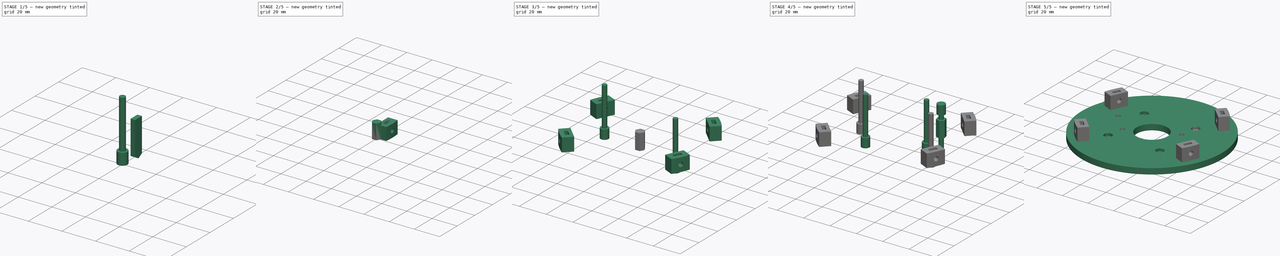
[diagram: build sequence overview — one tinted view per stage of 5, left to right]
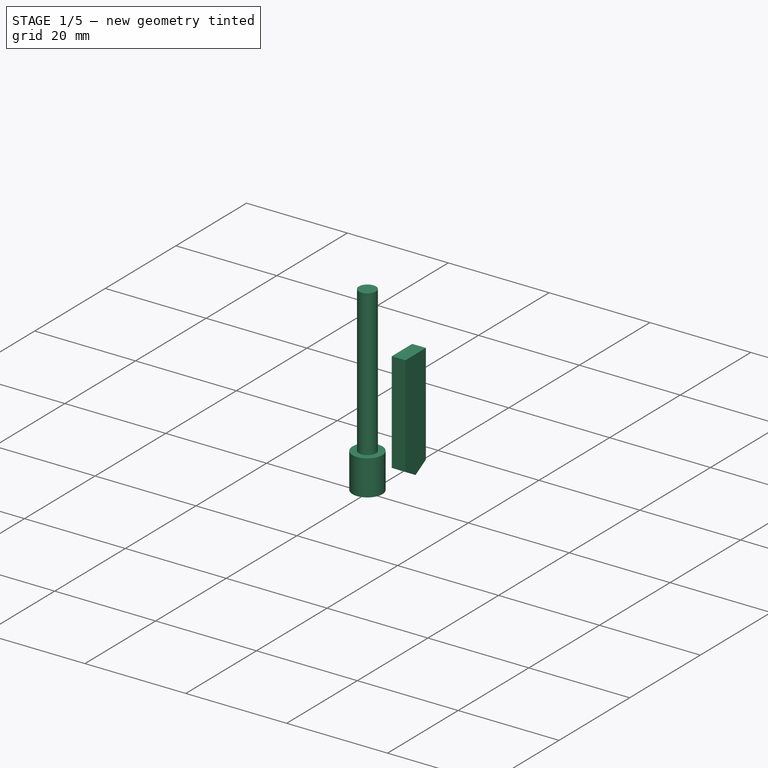
[diagram: stage 1 of 5 — iso view after this stage's code; geometry added in this stage tinted green]
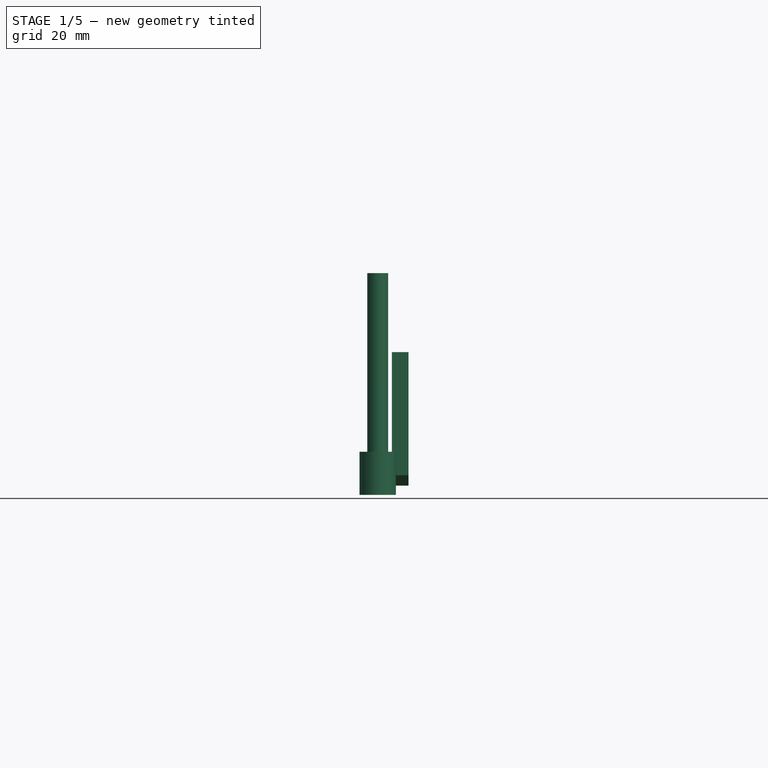
[diagram: stage 1 of 5 — front view after this stage's code; geometry added in this stage tinted green]
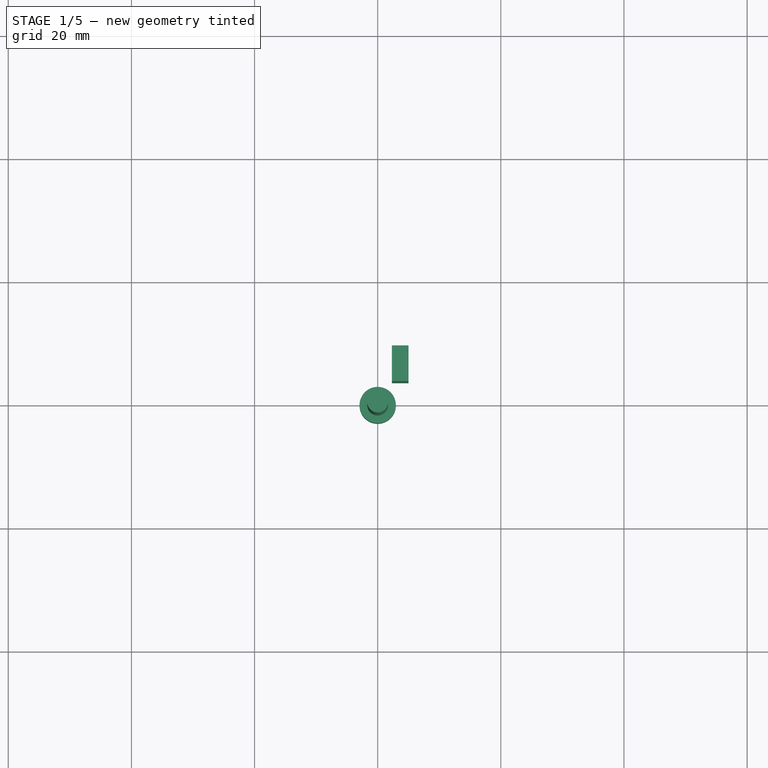
[diagram: stage 1 of 5 — top view after this stage's code; geometry added in this stage tinted green]
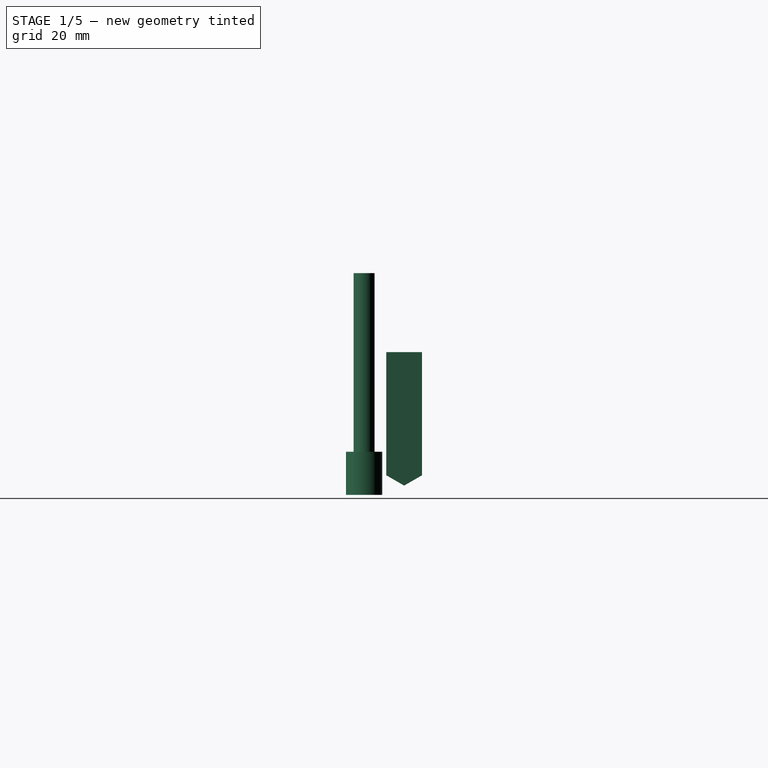
[diagram: stage 1 of 5 — right view after this stage's code; geometry added in this stage tinted green]
FCSTD DOCUMENT  (FreeCAD 0.16R6460 (Git))
Label: Art4BodyBot
License: All rights reserved
LicenseURL: http://en.wikipedia.org/wiki/All_rights_reserved
objects: Part::FeaturePython×13, Part::MultiFuse×5, Sketcher::SketchObject×3, Part::Cylinder×2, PartDesign::Pad×2, Part::Cut×2, Part::Prism×1, PartDesign::Revolution×1, App::DocumentObjectGroup×1
note: 32 computed .brp shape members not serialized (recipe doc carries the construction recipe); baked Part::Feature solids carry a one-line shape summary decoded from their .brp

FEATURE [Part::Cylinder] Cylinder  label="M3BoltHead"
  Angle = 360
  Height = 7
  Radius = 2.95
FEATURE [Part::Cylinder] Cylinder001  label="M3BoltBody"
  Angle = 360
  Height = 30
  Placement = pos=(0,0,6) rot=(0,0,1;0rad)
  Radius = 1.7
FEATURE [Part::MultiFuse] Fusion  label="M3Bolt"
  Shapes = -> [Cylinder001,Cylinder]
FEATURE [Sketcher::SketchObject] Sketch003  label="M3NutHousingSketch"
  sketch-geometry (5):
    g0: LineSegment StartX=0 StartY=0 StartZ=0 EndX=1.67432 EndY=2.9 EndZ=0
    g1: LineSegment StartX=1.67432 StartY=2.9 StartZ=0 EndX=21.6743 EndY=2.9 EndZ=0
    g2: LineSegment StartX=21.6743 StartY=2.9 StartZ=0 EndX=21.6743 EndY=-2.9 EndZ=0
    g3: LineSegment StartX=21.6743 StartY=-2.9 StartZ=0 EndX=1.67432 EndY=-2.9 EndZ=0
    g4: LineSegment StartX=1.67432 StartY=-2.9 StartZ=0 EndX=0 EndY=0 EndZ=0
  constraints (14):
    c: Coincident(g-1,g0)
    c: Coincident(g0,g1)
    c: Horizontal(g1)
    c: Coincident(g1,g2)
    c: Vertical(g2)
    c: Coincident(g2,g3)
    c: Horizontal(g3)
    c: Coincident(g3,g4)
    c: Coincident(g4,g0)
    c: Equal(g3,g1)
    c: Equal(g4,g0)
    c: DistanceY(g2) = -5.8
    c: Angle(g-1,g0) = 1.0472
    c: DistanceX(g3) = -20
FEATURE [PartDesign::Pad] Pad002  label="M3NutHousing"
  Length = 2.7
  Length2 = 100
  Sketch = -> Sketch003
  Type = 0
FEATURE [Part::FeaturePython] Clone271  label="Clone of M3NutHousing025"  # Draft clone (typed FeaturePython)
  Objects = -> [Pad002]
  Placement = pos=(5,6.5,1.5) rot=(0,-1,0;1.5708rad)
  Scale = (1,1,1)
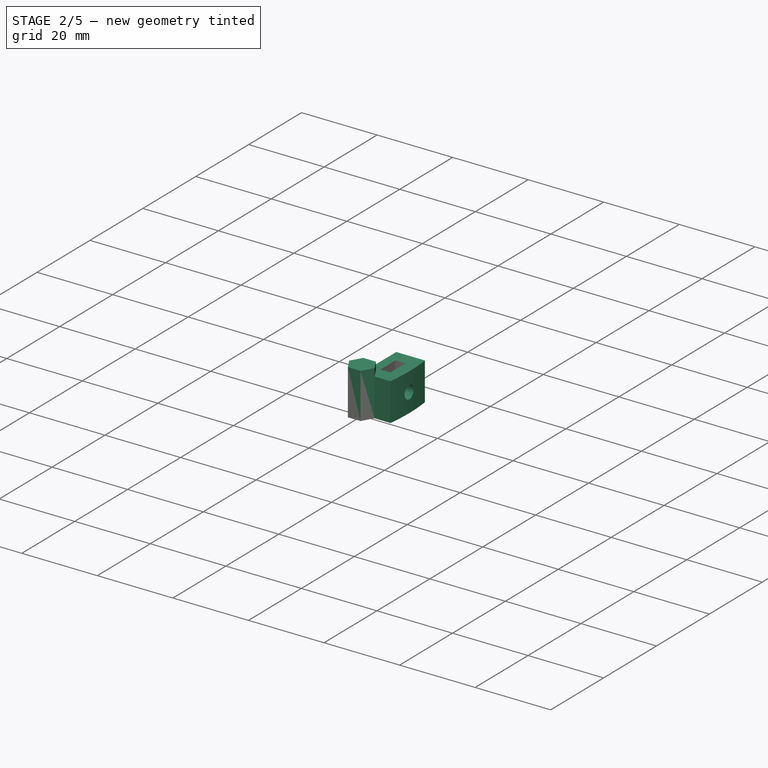
[diagram: stage 2 of 5 — iso view after this stage's code; geometry added in this stage tinted green]
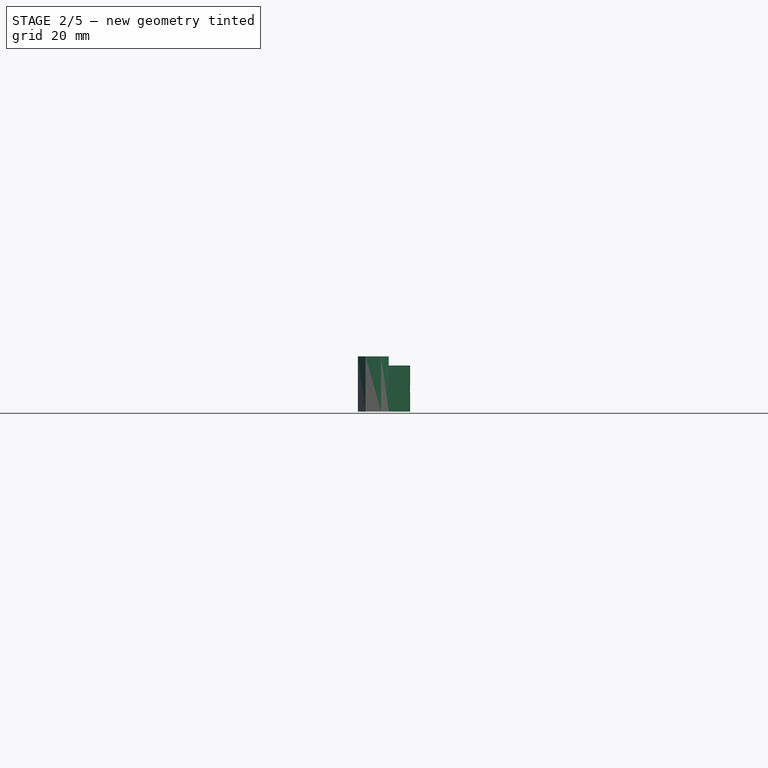
[diagram: stage 2 of 5 — front view after this stage's code; geometry added in this stage tinted green]
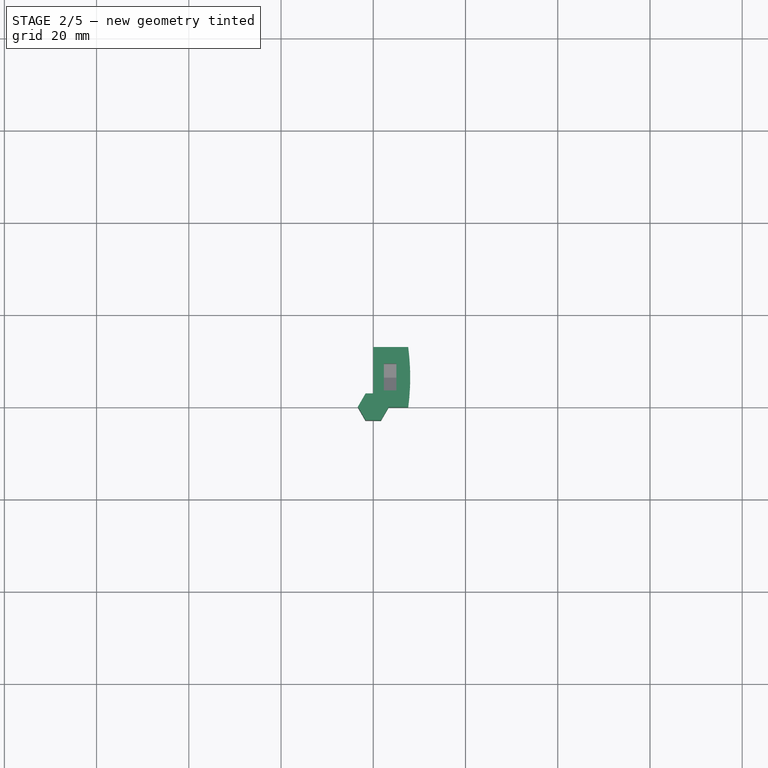
[diagram: stage 2 of 5 — top view after this stage's code; geometry added in this stage tinted green]
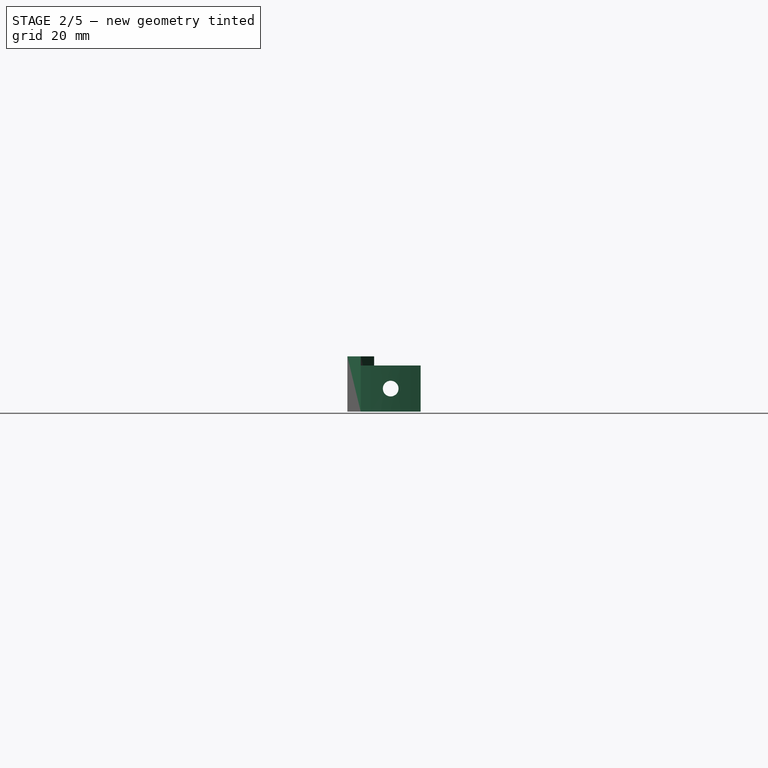
[diagram: stage 2 of 5 — right view after this stage's code; geometry added in this stage tinted green]
FEATURE [Part::Prism] Prism  label="M3Nut"
  Circumradius = 3.35
  Height = 12
  Polygon = 6
FEATURE [Sketcher::SketchObject] Sketch050
  sketch-geometry (4):
    g0: LineSegment StartX=7.5757 StartY=0 StartZ=0 EndX=0 EndY=0 EndZ=0
    g1: LineSegment StartX=0 StartY=0 StartZ=0 EndX=0 EndY=13 EndZ=0
    g2: LineSegment StartX=0 StartY=13 StartZ=0 EndX=7.5757 EndY=13 EndZ=0
    g3: ArcOfCircle CenterX=-42 CenterY=6.5 CenterZ=0 NormalX=0 NormalY=0 NormalZ=1 Radius=50 StartAngle=6.15282 EndAngle=6.41355
  constraints (13):
    c: PointOnObject(g0,g-1)
    c: Horizontal(g0)
    c: Coincident(g0,g1)
    c: Vertical(g1)
    c: Coincident(g1,g2)
    c: Horizontal(g2)
    c: Coincident(g3,g2)
    c: Coincident(g3,g0)
    c: Coincident(g-1,g0)
    c: DistanceY(g1) = 13
    c: Equal(g0,g2)
    c: Radius(g3) = 50
    c: DistanceX(g-1,g3) = -42
FEATURE [PartDesign::Pad] Pad034
  Length = 10
  Length2 = 100
  Sketch = -> Sketch050
  Type = 0
FEATURE [Part::FeaturePython] Clone270  label="Clone of M3Bolt094"  # Draft clone (typed FeaturePython)
  Objects = -> [Fusion]
  Placement = pos=(24.5,6.5,5) rot=(0,-1,0;1.5708rad)
  Scale = (1,1,1)
FEATURE [Part::MultiFuse] Fusion093
  Shapes = -> [Clone270,Clone271]
FEATURE [Part::Cut] Cut080  label="Art4BodyFixMaster"
  Base = -> Pad034
  Tool = -> Fusion093
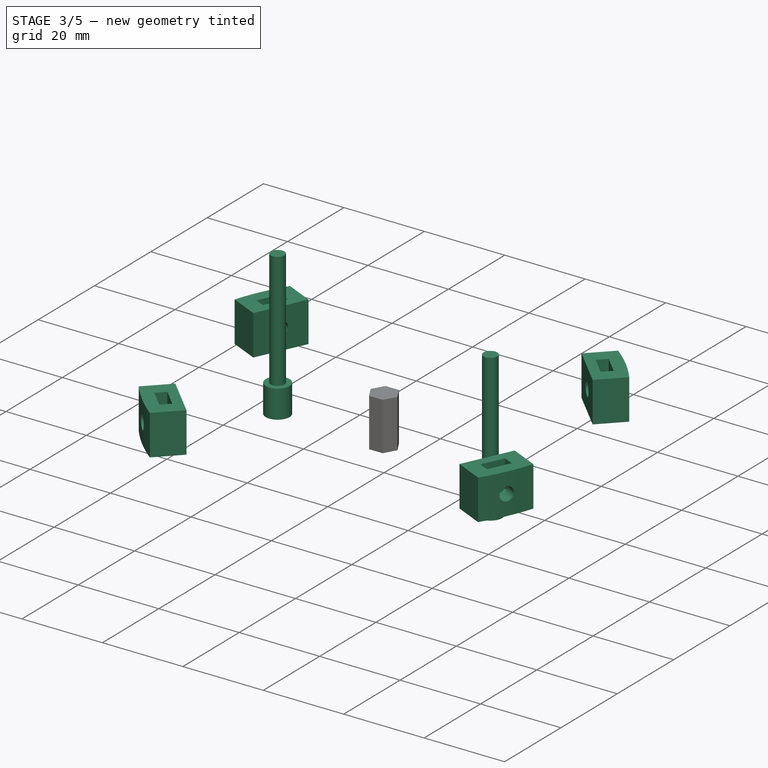
[diagram: stage 3 of 5 — iso view after this stage's code; geometry added in this stage tinted green]
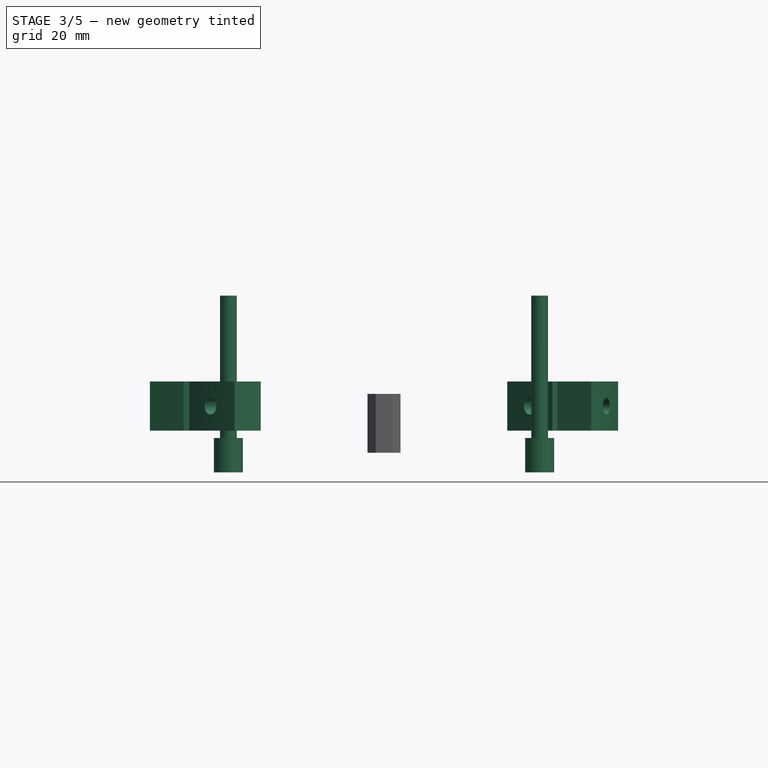
[diagram: stage 3 of 5 — front view after this stage's code; geometry added in this stage tinted green]
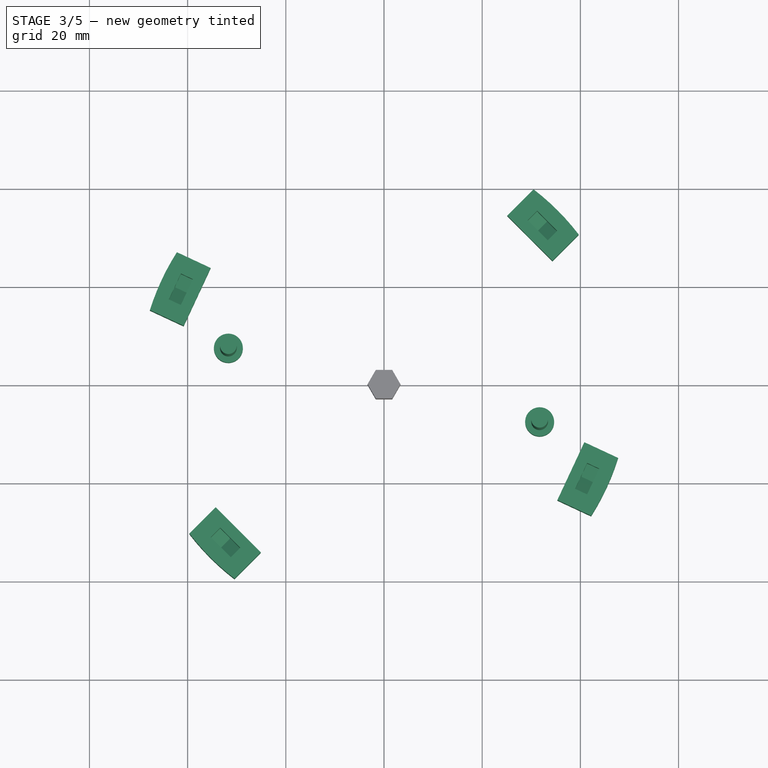
[diagram: stage 3 of 5 — top view after this stage's code; geometry added in this stage tinted green]
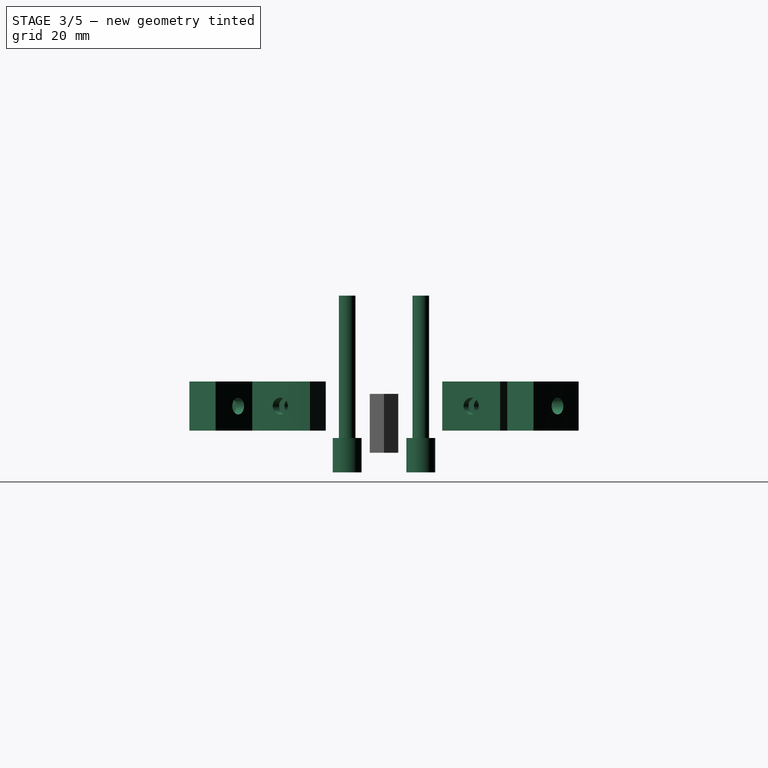
[diagram: stage 3 of 5 — right view after this stage's code; geometry added in this stage tinted green]
FEATURE [Part::FeaturePython] Clone268  label="Clone of M3Bolt092"  # Draft clone (typed FeaturePython)
  Objects = -> [Fusion]
  Placement = pos=(31.7,-7.5,-4) rot=(0,0,-1;1.5708rad)
  Scale = (1,1,1)
FEATURE [Part::FeaturePython] Clone269  label="Clone of M3Bolt093"  # Draft clone (typed FeaturePython)
  Objects = -> [Fusion]
  Placement = pos=(-31.7,7.5,-4) rot=(0,0,1;1.5708rad)
  Scale = (1,1,1)
FEATURE [Part::FeaturePython] Clone272  label="Clone of Art4BodyFixMaster"  # Draft clone (typed FeaturePython)
  Objects = -> [Cut080]
  Placement = pos=(34.2947,25.1023,4.5) rot=(0,0,1;0.785398rad)
  Scale = (1,1,1)
FEATURE [Part::FeaturePython] Clone273  label="Clone of Art4BodyFixMaster001"  # Draft clone (typed FeaturePython)
  Objects = -> [Cut080]
  Placement = pos=(-34.2947,-25.1023,4.5) rot=(0,0,1;3.92699rad)
  Scale = (1,1,1)
FEATURE [Part::FeaturePython] Clone274  label="Clone of Art4BodyFixMaster002"  # Draft clone (typed FeaturePython)
  Objects = -> [Cut080]
  Placement = pos=(35.3179,-23.641,4.5) rot=(0,0,-1;0.436332rad)
  Scale = (1,1,1)
FEATURE [Part::FeaturePython] Clone275  label="Clone of Art4BodyFixMaster003"  # Draft clone (typed FeaturePython)
  Objects = -> [Cut080]
  Placement = pos=(-35.3179,23.641,4.5) rot=(0,0,1;2.70526rad)
  Scale = (1,1,1)
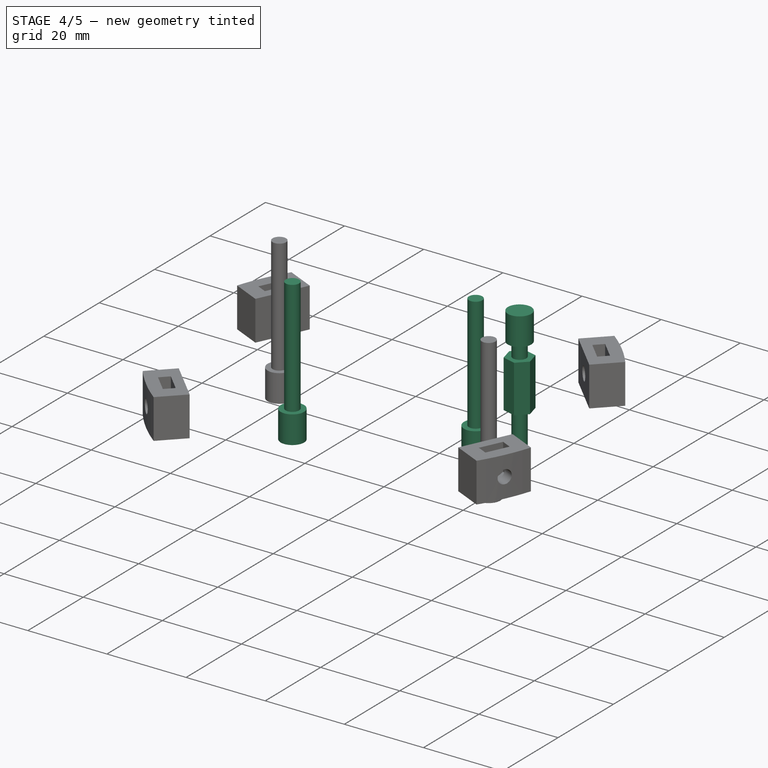
[diagram: stage 4 of 5 — iso view after this stage's code; geometry added in this stage tinted green]
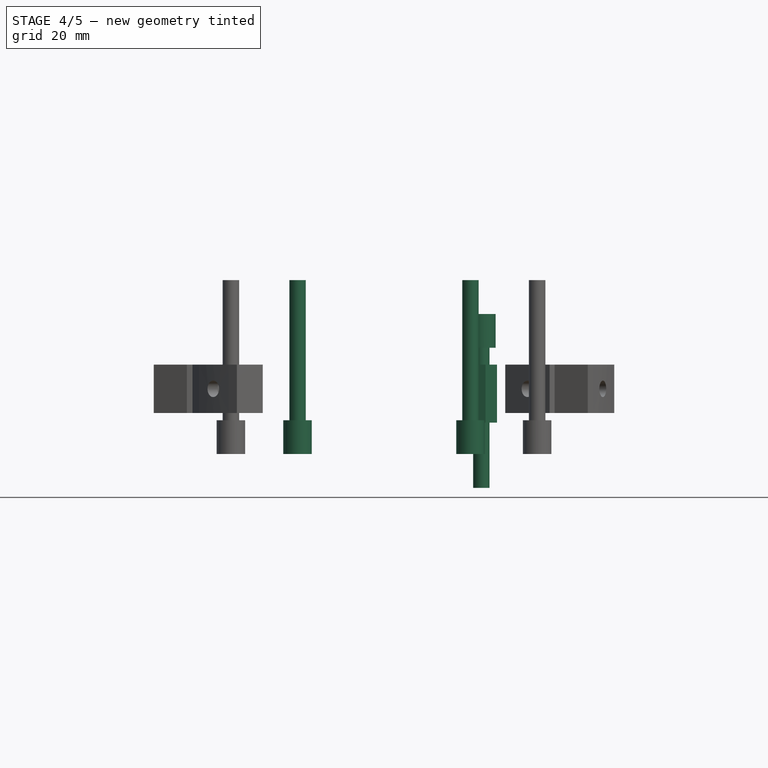
[diagram: stage 4 of 5 — front view after this stage's code; geometry added in this stage tinted green]
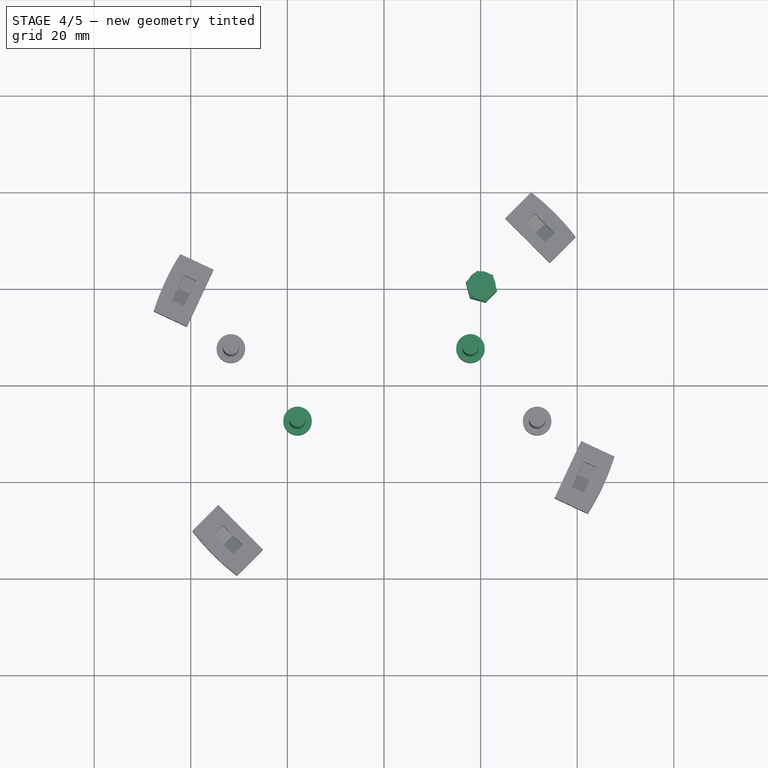
[diagram: stage 4 of 5 — top view after this stage's code; geometry added in this stage tinted green]
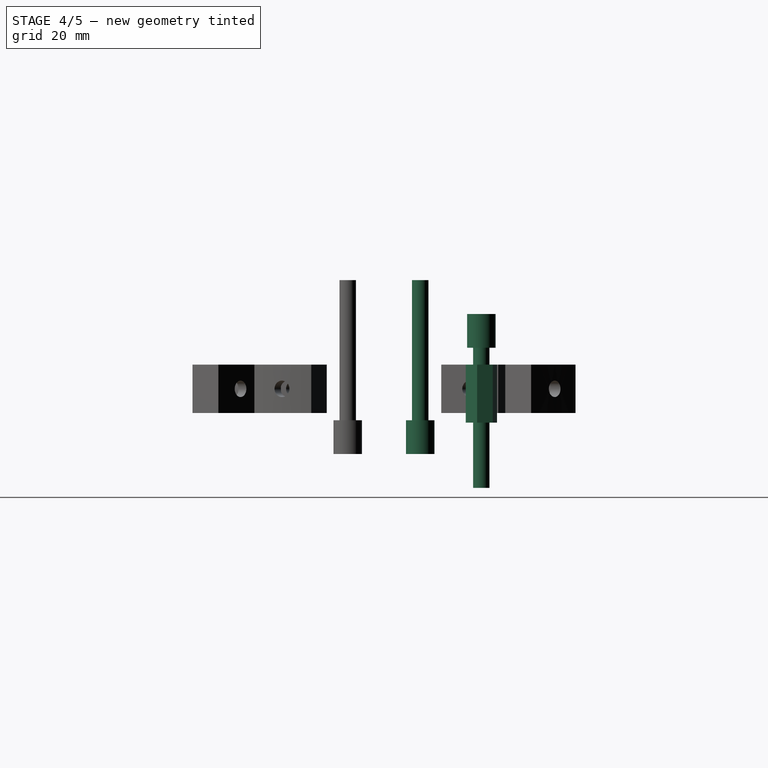
[diagram: stage 4 of 5 — right view after this stage's code; geometry added in this stage tinted green]
FEATURE [Part::FeaturePython] Clone264  label="Clone of M3Bolt089"  # Draft clone (typed FeaturePython)
  Objects = -> [Fusion]
  Placement = pos=(28.5,0,25) rot=(1,0,0;3.14159rad)
  Scale = (1,1,1)
FEATURE [Part::FeaturePython] Clone265  label="Clone of M3Nut013"  # Draft clone (typed FeaturePython)
  Objects = -> [Prism]
  Placement = pos=(28.5,0,2.5) rot=(0,0,1;0rad)
  Scale = (1,1,1)
FEATURE [Part::MultiFuse] Fusion091
  Placement = pos=(0,0,0) rot=(0,0,1;0.785398rad)
  Shapes = -> [Clone264,Clone265]
FEATURE [Part::FeaturePython] Clone266  label="Clone of M3Bolt090"  # Draft clone (typed FeaturePython)
  Objects = -> [Fusion]
  Placement = pos=(17.9,7.5,-4) rot=(0,0,-1;1.5708rad)
  Scale = (1,1,1)
FEATURE [Part::FeaturePython] Clone267  label="Clone of M3Bolt091"  # Draft clone (typed FeaturePython)
  Objects = -> [Fusion]
  Placement = pos=(-17.9,-7.5,-4) rot=(0,0,1;1.5708rad)
  Scale = (1,1,1)
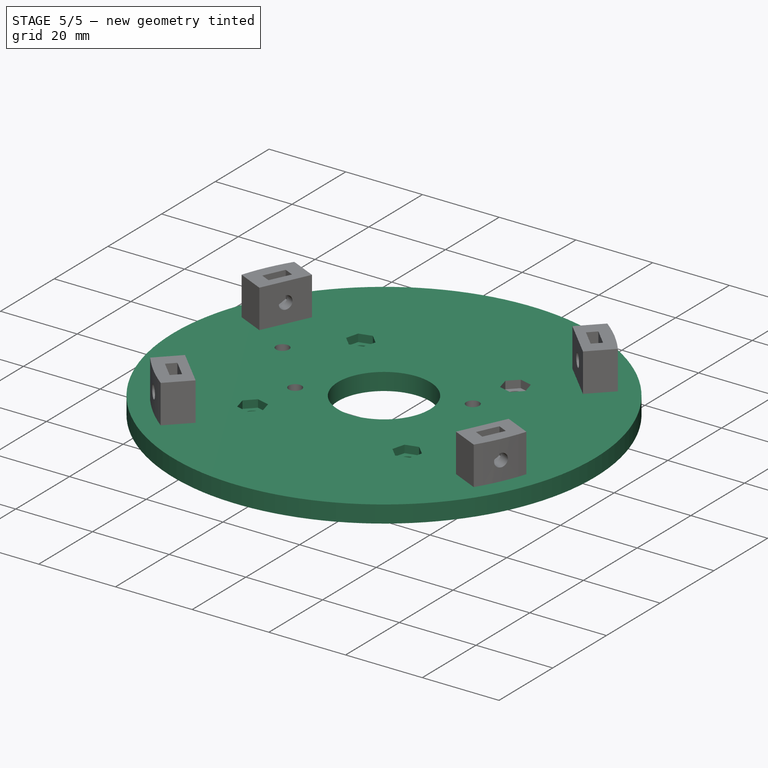
[diagram: stage 5 of 5 — iso view after this stage's code; geometry added in this stage tinted green]
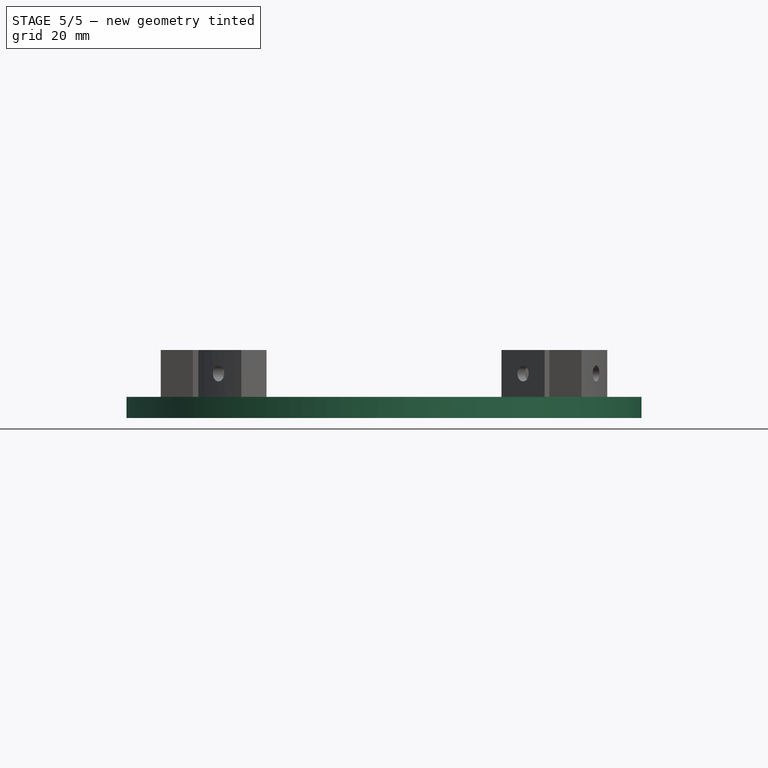
[diagram: stage 5 of 5 — front view after this stage's code; geometry added in this stage tinted green]
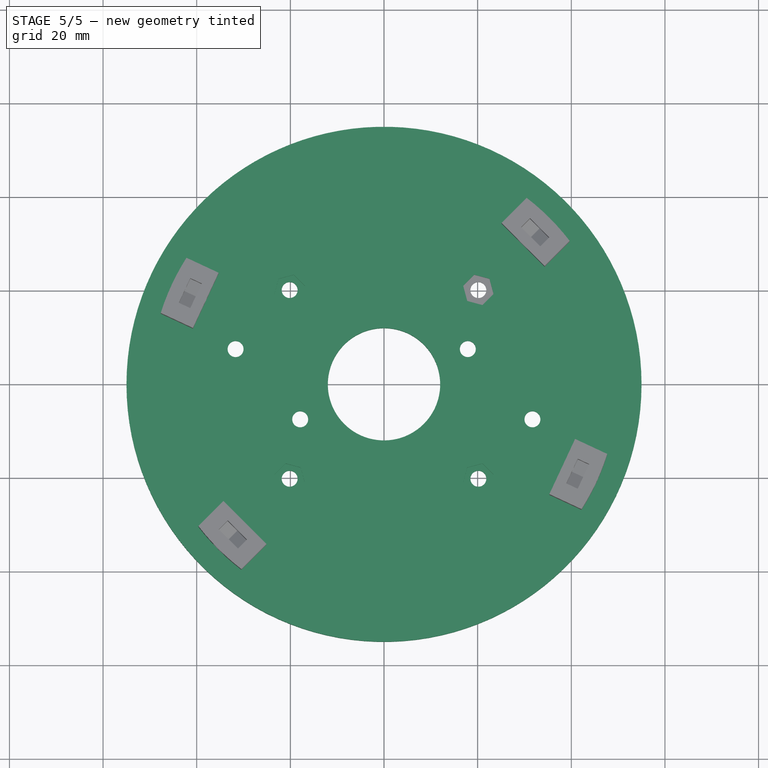
[diagram: stage 5 of 5 — top view after this stage's code; geometry added in this stage tinted green]
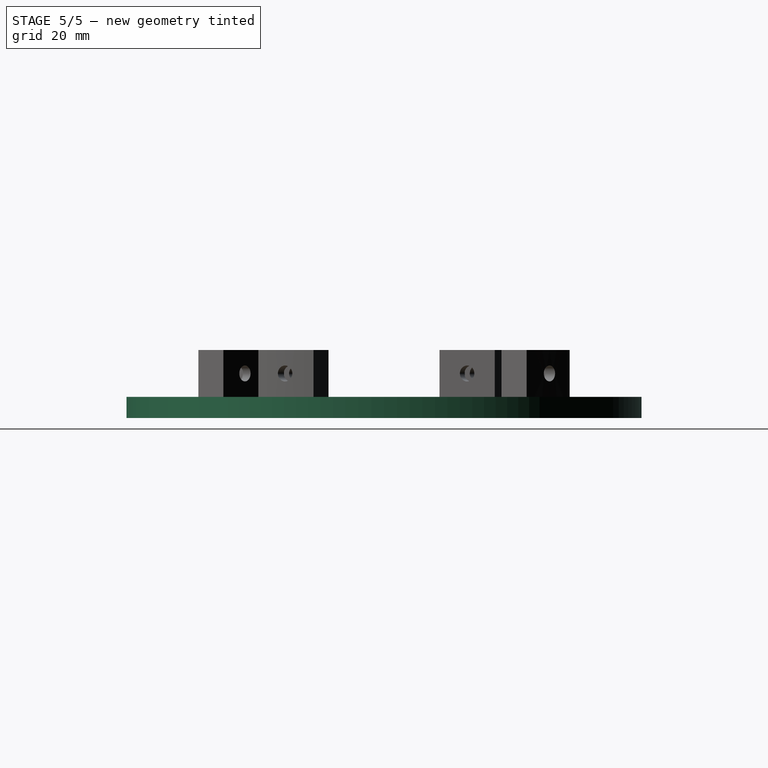
[diagram: stage 5 of 5 — right view after this stage's code; geometry added in this stage tinted green]
FEATURE [Sketcher::SketchObject] Sketch049
  Placement = pos=(0,0,0) rot=(1,0,0;1.5708rad)
  sketch-geometry (4):
    g0: LineSegment StartX=12 StartY=4.5 StartZ=0 EndX=55 EndY=4.5 EndZ=0
    g1: LineSegment StartX=55 StartY=4.5 StartZ=0 EndX=55 EndY=0 EndZ=0
    g2: LineSegment StartX=55 StartY=0 StartZ=0 EndX=12 EndY=0 EndZ=0
    g3: LineSegment StartX=12 StartY=0 StartZ=0 EndX=12 EndY=4.5 EndZ=0
  constraints (12):
    c: Coincident(g0,g1)
    c: Coincident(g1,g2)
    c: Coincident(g2,g3)
    c: Coincident(g3,g0)
    c: Horizontal(g0)
    c: Horizontal(g2)
    c: Vertical(g1)
    c: Vertical(g3)
    c: PointOnObject(g1,g-1)
    c: DistanceY(g3) = 4.5
    c: DistanceX(g-1,g2) = 12
    c: DistanceX(g-1,g1) = 55
FEATURE [PartDesign::Revolution] Revolution011
  Angle = 360
  Axis = (0,0,1)
  Base = (0,0,0)
  Placement = pos=(0,0,0) rot=(1,0,0;1.5708rad)
  ReferenceAxis = -> Sketch049 [V_Axis]
  Reversed = true
  Sketch = -> Sketch049
FEATURE [Part::FeaturePython] Array011  # Draft array (typed FeaturePython)
  Angle = 360
  ArrayType = 1
  Axis = (0,0,1)
  Base = -> Fusion091
  Center = (0,0,0)
  Fuse = false
  IntervalAxis = (0,0,0)
  IntervalX = (1,0,0)
  IntervalY = (0,1,0)
  IntervalZ = (0,0,0)
  NumberPolar = 4
  NumberX = 2
  NumberY = 2
  NumberZ = 1
FEATURE [Part::MultiFuse] Fusion092
  Shapes = -> [Array011,Clone267,Clone269,Clone266,Clone268]
FEATURE [Part::Cut] Cut079  label="Cut154"
  Base = -> Revolution011
  Tool = -> Fusion092
FEATURE [Part::MultiFuse] Fusion107  label="Art4BodyBot"
  Shapes = -> [Cut079,Clone272,Clone274,Clone273,Clone275]
FEATURE [App::DocumentObjectGroup] Group  label="Master"
  Group = -> [Fusion,Pad002,Prism,Cut080]
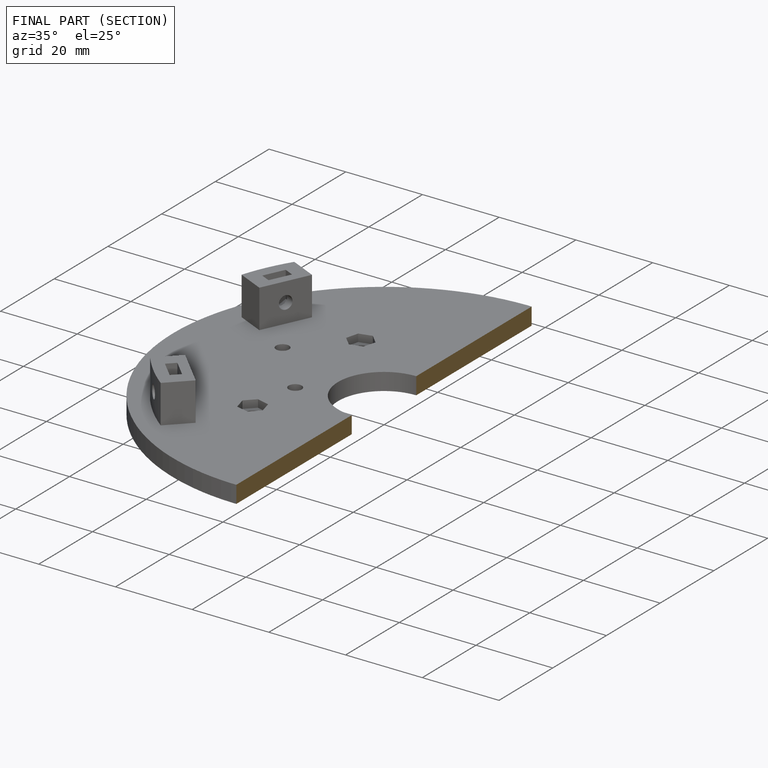
[diagram: finished part — half-section view (interior)]
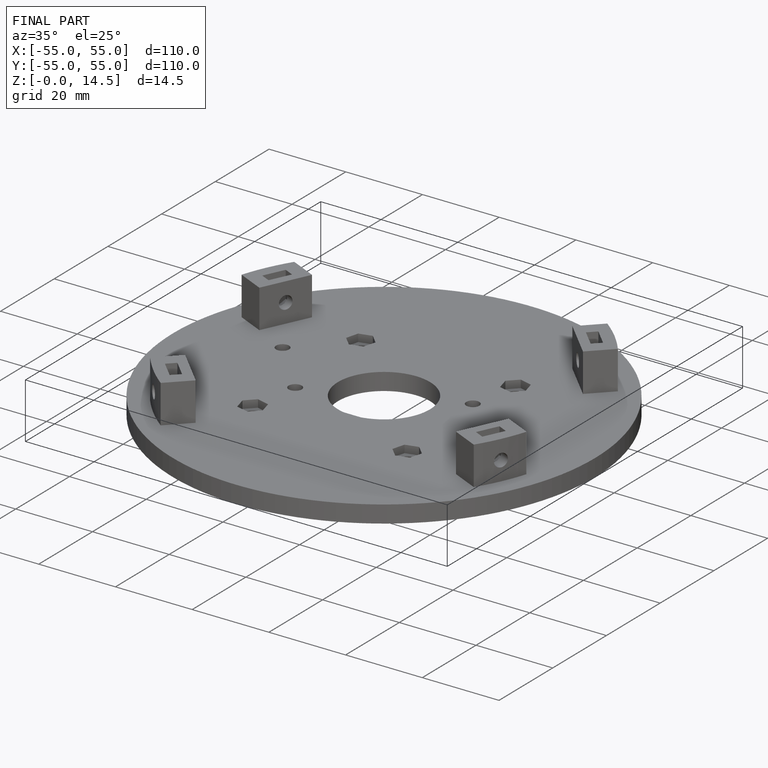
[diagram: finished part — iso view with bounding-box wireframe]
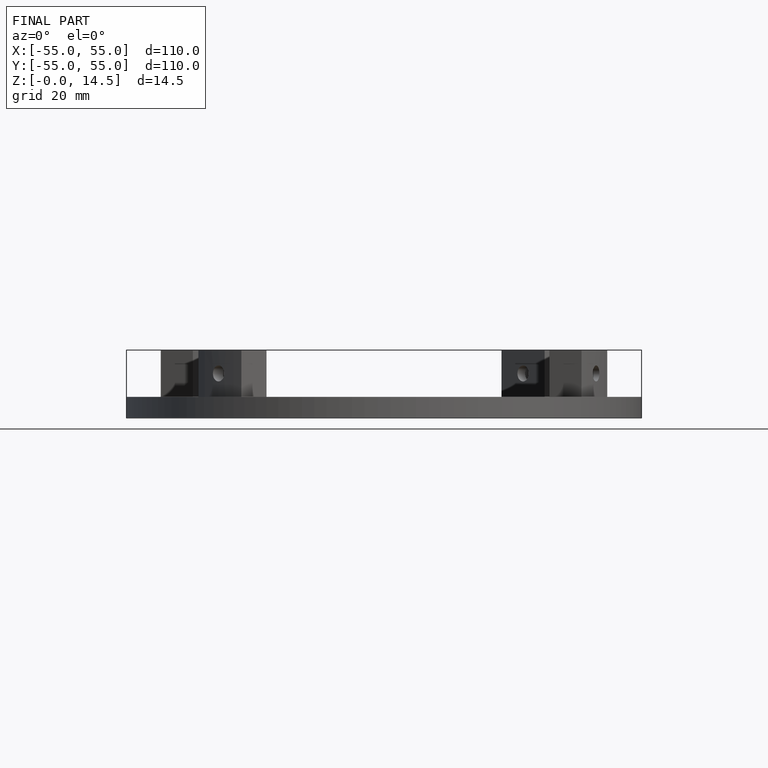
[diagram: finished part — front view with bounding-box wireframe]
